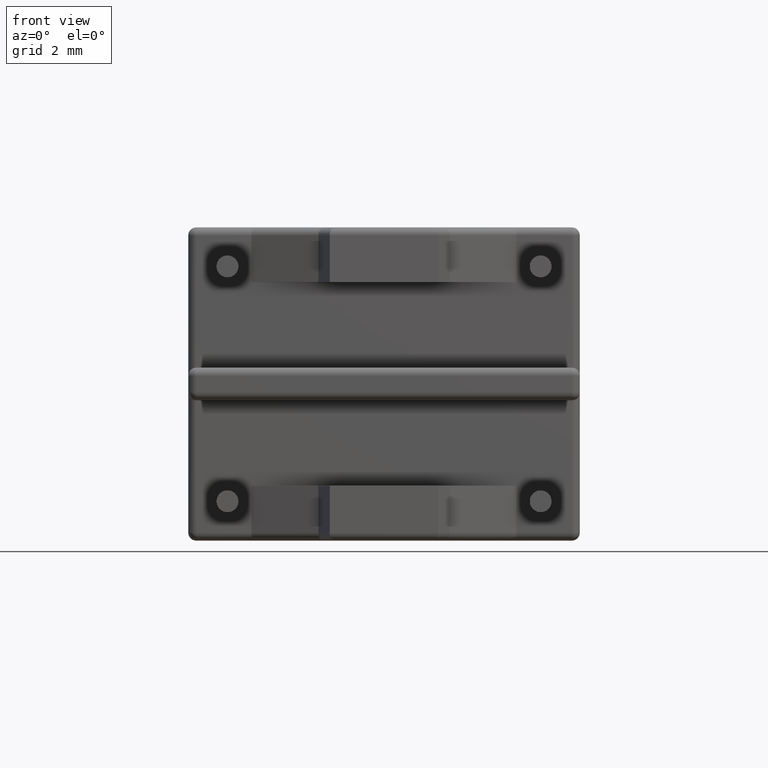
[diagram: clean part render]
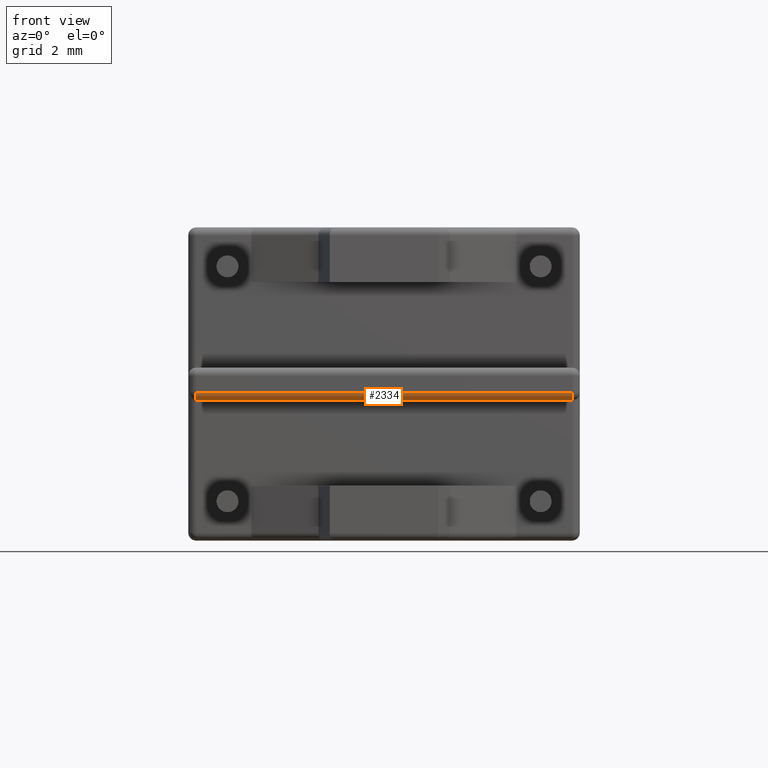
[diagram: same view with one face highlighted and labeled with its STEP entity id]
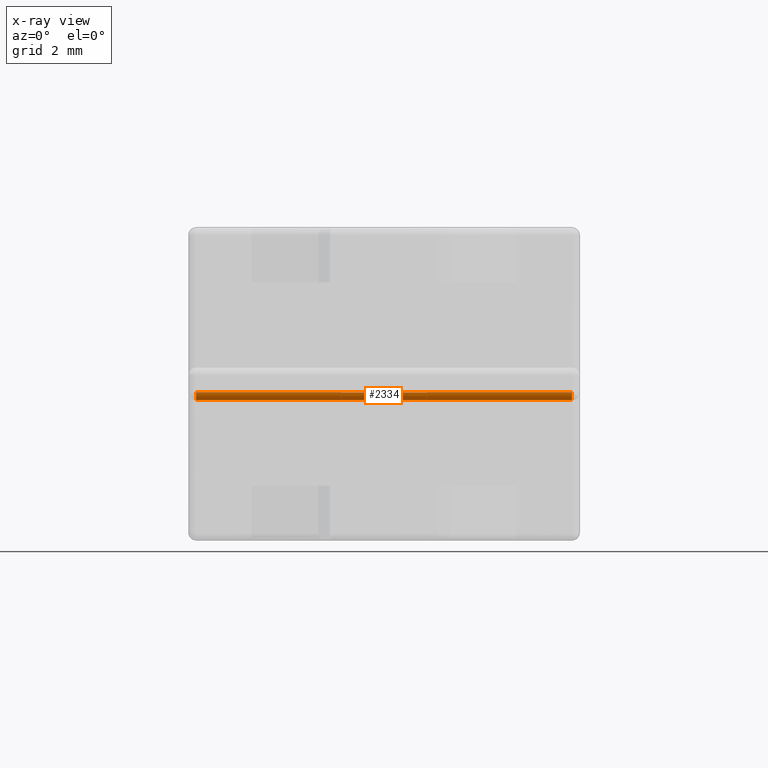
[diagram: x-ray of the same camera — body ghosted, the highlighted face saturated]
A machine part, front view. The second image highlights one B-rep face of the part: STEP entity #2334.
The next image is the same camera in x-ray: the body ghosted, the highlighted face saturated — about 0% of this face is hidden behind the body in this view.
In plain terms, the highlighted cylindrical surface (edge-blend (fillet) strip) has radius 0.25 mm, axis along (1, -0, 0).
Its self-contained STEP definition (entity closure, byte-faithful):
#97 = VERTEX_POINT ( 'NONE', #5122 ) ;
#109 = DIRECTION ( 'NONE',  ( -1.084202172485504400E-015, -1.000000000000000000, 0.0000000000000000000 ) ) ;
#237 = CARTESIAN_POINT ( 'NONE',  ( 0.0000000000000000000, -1.250000000000000000, -5.271152175176403000 ) ) ;
#427 = CARTESIAN_POINT ( 'NONE',  ( 12.25000000000000000, -1.500000000000000000, -5.271152175176403000 ) ) ;
#644 = VERTEX_POINT ( 'NONE', #4552 ) ;
#1085 = VECTOR ( 'NONE', #2048, 1000.000000000000000 ) ;
#1125 = ORIENTED_EDGE ( 'NONE', *, *, #1248, .F. ) ;
#1130 = DIRECTION ( 'NONE',  ( 0.0000000000000000000, 0.0000000000000000000, -1.000000000000000000 ) ) ;
#1240 = CYLINDRICAL_SURFACE ( 'NONE', #1296, 0.2500000000000002200 ) ;
#1248 = EDGE_CURVE ( 'NONE', #97, #3874, #2946, .T. ) ;
#1270 = EDGE_CURVE ( 'NONE', #644, #97, #3058, .T. ) ;
#1296 = AXIS2_PLACEMENT_3D ( 'NONE', #237, #5268, #7871 ) ;
#2048 = DIRECTION ( 'NONE',  ( 1.000000000000000000, -0.0000000000000000000, 0.0000000000000000000 ) ) ;
#2151 = EDGE_LOOP ( 'NONE', ( #1125, #7153, #5626, #5814 ) ) ;
#2334 = ADVANCED_FACE ( 'NONE', ( #3672 ), #1240, .T. ) ;
#2493 = CIRCLE ( 'NONE', #3378, 0.2500000000000002200 ) ;
#2946 = CIRCLE ( 'NONE', #6305, 0.2500000000000000000 ) ;
#3058 = LINE ( 'NONE', #7877, #7178 ) ;
#3261 = CARTESIAN_POINT ( 'NONE',  ( 0.2500000000000002200, -1.250000000000000000, -5.271152175176403000 ) ) ;
#3376 = EDGE_CURVE ( 'NONE', #3874, #4149, #6427, .T. ) ;
#3378 = AXIS2_PLACEMENT_3D ( 'NONE', #3776, #8265, #1130 ) ;
#3672 = FACE_OUTER_BOUND ( 'NONE', #2151, .T. ) ;
#3776 = CARTESIAN_POINT ( 'NONE',  ( 12.25000000000000000, -1.250000000000000000, -5.271152175176403000 ) ) ;
#3874 = VERTEX_POINT ( 'NONE', #4891 ) ;
#3928 = DIRECTION ( 'NONE',  ( -1.000000000000000000, 1.084202172485504200E-015, 0.0000000000000000000 ) ) ;
#4149 = VERTEX_POINT ( 'NONE', #427 ) ;
#4552 = CARTESIAN_POINT ( 'NONE',  ( 12.25000000000000000, -1.250000000000000000, -5.521152175176403000 ) ) ;
#4691 = EDGE_CURVE ( 'NONE', #4149, #644, #2493, .T. ) ;
#4891 = CARTESIAN_POINT ( 'NONE',  ( 0.2499999999999999400, -1.500000000000000000, -5.271152175176403000 ) ) ;
#5122 = CARTESIAN_POINT ( 'NONE',  ( 0.2500000000000002200, -1.250000000000000000, -5.521152175176403000 ) ) ;
#5268 = DIRECTION ( 'NONE',  ( 1.000000000000000000, -0.0000000000000000000, 0.0000000000000000000 ) ) ;
#5316 = CARTESIAN_POINT ( 'NONE',  ( 0.0000000000000000000, -1.500000000000000000, -5.271152175176403000 ) ) ;
#5626 = ORIENTED_EDGE ( 'NONE', *, *, #4691, .F. ) ;
#5814 = ORIENTED_EDGE ( 'NONE', *, *, #3376, .F. ) ;
#6305 = AXIS2_PLACEMENT_3D ( 'NONE', #3261, #3928, #109 ) ;
#6427 = LINE ( 'NONE', #5316, #1085 ) ;
#7153 = ORIENTED_EDGE ( 'NONE', *, *, #1270, .F. ) ;
#7178 = VECTOR ( 'NONE', #7337, 1000.000000000000000 ) ;
#7337 = DIRECTION ( 'NONE',  ( -1.000000000000000000, -0.0000000000000000000, -0.0000000000000000000 ) ) ;
#7871 = DIRECTION ( 'NONE',  ( 0.0000000000000000000, 0.0000000000000000000, -1.000000000000000000 ) ) ;
#7877 = CARTESIAN_POINT ( 'NONE',  ( 12.50000000000000000, -1.250000000000000000, -5.521152175176403000 ) ) ;
#8265 = DIRECTION ( 'NONE',  ( 1.000000000000000000, 0.0000000000000000000, 0.0000000000000000000 ) ) ;